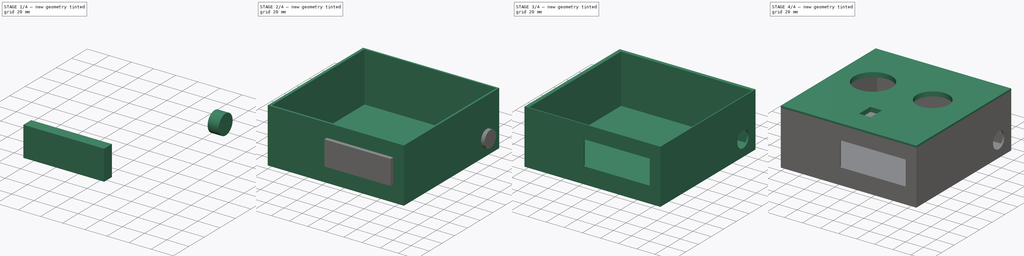
[diagram: build sequence overview — one tinted view per stage of 4, left to right]
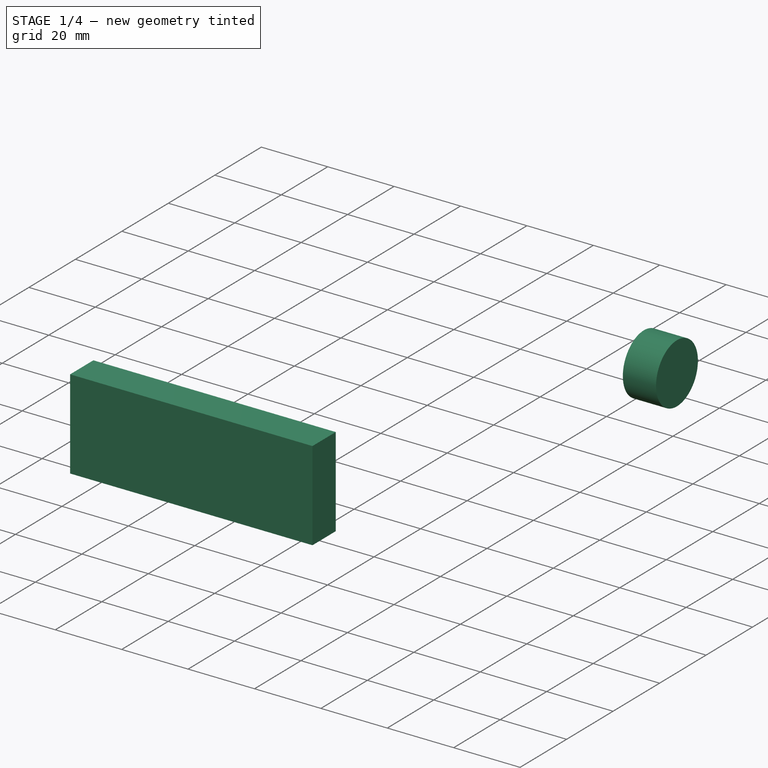
[diagram: stage 1 of 4 — iso view after this stage's code; geometry added in this stage tinted green]
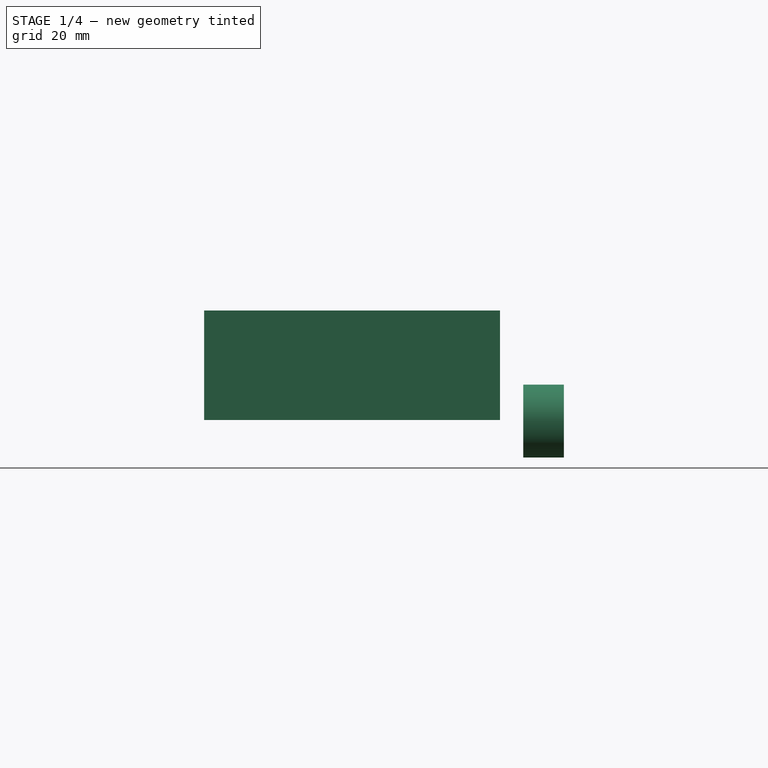
[diagram: stage 1 of 4 — front view after this stage's code; geometry added in this stage tinted green]
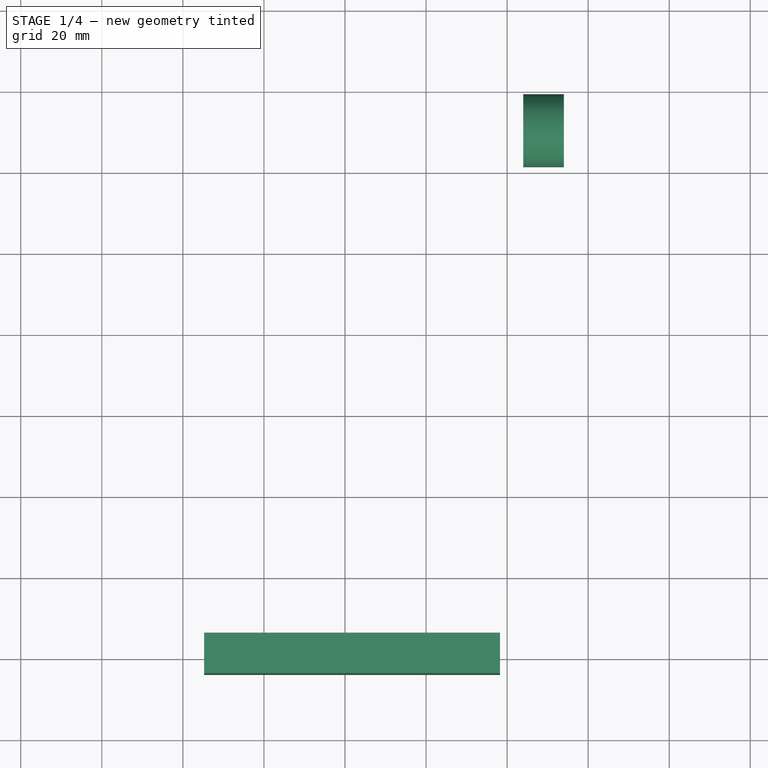
[diagram: stage 1 of 4 — top view after this stage's code; geometry added in this stage tinted green]
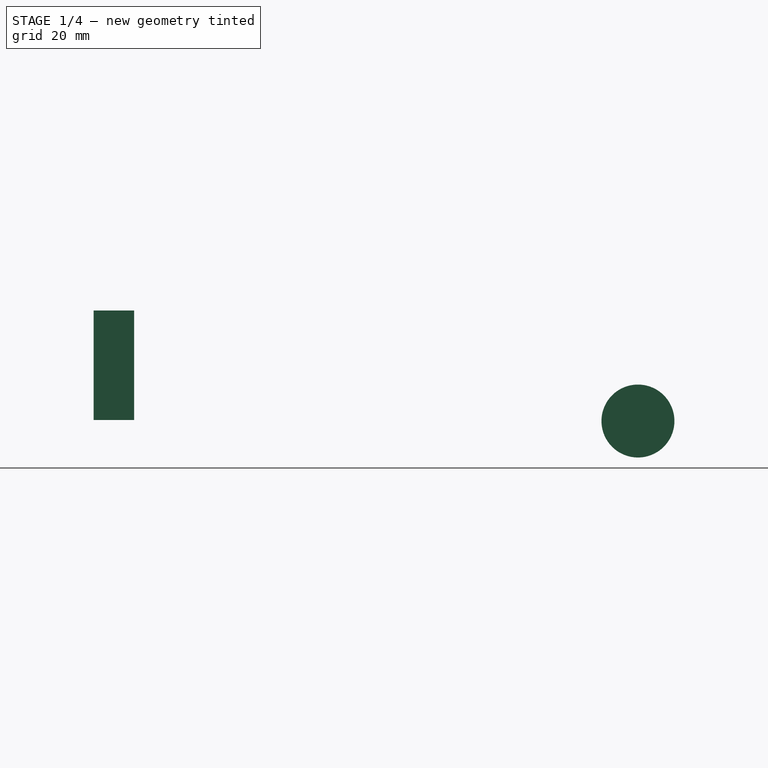
[diagram: stage 1 of 4 — right view after this stage's code; geometry added in this stage tinted green]
FCSTD DOCUMENT  (FreeCAD 0.17R13541 (Git))
Label: Caja_Final_TodoOk
License: All rights reserved
LicenseURL: http://en.wikipedia.org/wiki/All_rights_reserved
objects: Part::Box×3, Sketcher::SketchObject×3, Part::Extrusion×3, Part::Cut×3, Part::Chamfer×2, Part::Fuse×1
note: 15 computed .brp shape members not serialized (recipe doc carries the construction recipe); baked Part::Feature solids carry a one-line shape summary decoded from their .brp

FEATURE [Sketcher::SketchObject] Sketch
  MapMode = 5
  Placement = pos=(0,0,0) rot=(1,0,0;1.5708rad)
  sketch-geometry (4):
    g0: LineSegment StartX=65.2534 StartY=44.9971 StartZ=0 EndX=138.253 EndY=44.9971 EndZ=0
    g1: LineSegment StartX=138.253 StartY=44.9971 StartZ=0 EndX=138.253 EndY=17.9971 EndZ=0
    g2: LineSegment StartX=138.253 StartY=17.9971 StartZ=0 EndX=65.2534 EndY=17.9971 EndZ=0
    g3: LineSegment StartX=65.2534 StartY=17.9971 StartZ=0 EndX=65.2534 EndY=44.9971 EndZ=0
  constraints (10):
    c: Coincident(g0,g1)
    c: Coincident(g1,g2)
    c: Coincident(g2,g3)
    c: Coincident(g3,g0)
    c: Horizontal(g0)
    c: Horizontal(g2)
    c: Vertical(g1)
    c: Vertical(g3)
    c: DistanceX(g2,g2) = 73
    c: DistanceY(g1,g1) = 27
FEATURE [Part::Extrusion] Extrude  label="LCD"
  Base = -> Sketch
  Dir = (0,-1,0)
  DirMode = 2
  FaceMakerClass = Part::FaceMakerBullseye
  LengthFwd = 10
  LengthRev = 0
  Placement = pos=(0,6,0) rot=(0,0,1;0rad)
  Solid = true
  Symmetric = false
FEATURE [Sketcher::SketchObject] Sketch001
  MapMode = 5
  Placement = pos=(150,0,0) rot=(0.57735,0.57735,0.57735;2.0944rad)
  sketch-geometry (1):
    g0: Circle CenterX=129.312 CenterY=12.7282 CenterZ=0 NormalX=0 NormalY=0 NormalZ=1 AngleXU=0 Radius=9
  constraints (1):
    c: Radius(g0) = 9
FEATURE [Part::Extrusion] Extrude001  label="ConexionAlimentacion"
  Base = -> Sketch001
  Dir = (1,0,0)
  DirMode = 2
  FaceMakerClass = Part::FaceMakerBullseye
  LengthFwd = 10
  LengthRev = 0
  Placement = pos=(-6,1,5) rot=(0,0,1;0rad)
  Solid = true
  Symmetric = false
FEATURE [Part::Fuse] Fusion
  Base = -> Extrude
  Tool = -> Extrude001
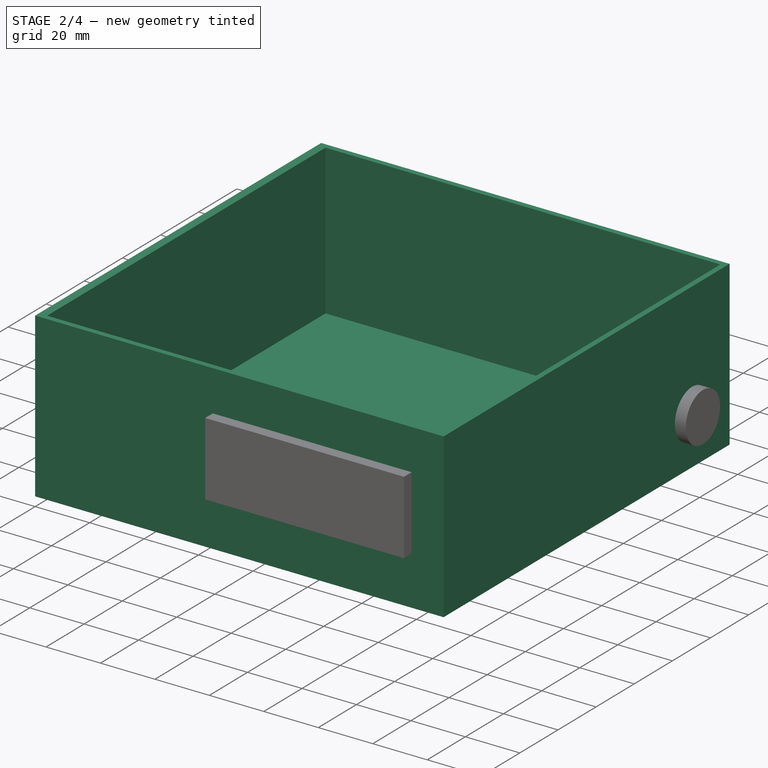
[diagram: stage 2 of 4 — iso view after this stage's code; geometry added in this stage tinted green]
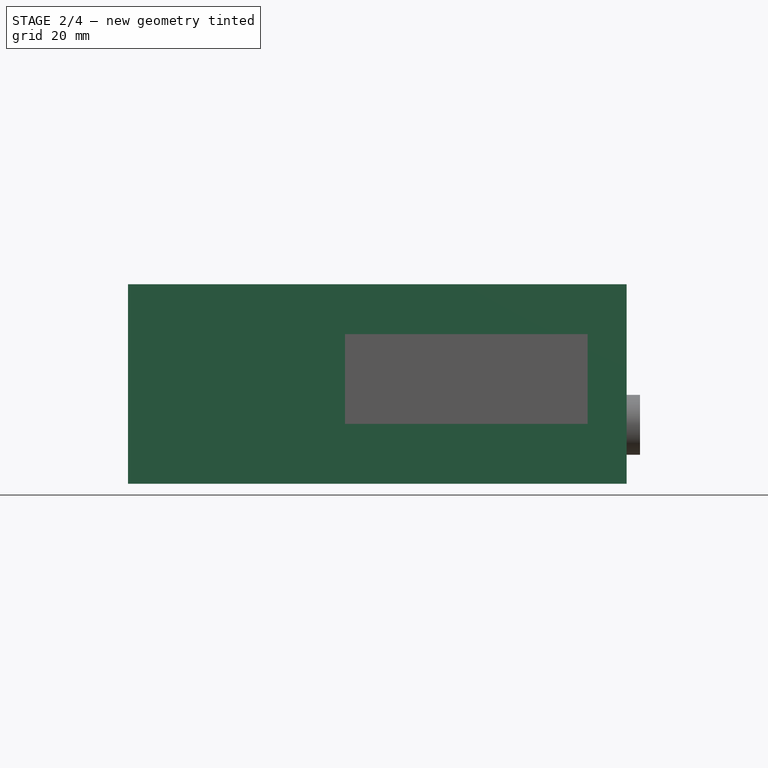
[diagram: stage 2 of 4 — front view after this stage's code; geometry added in this stage tinted green]
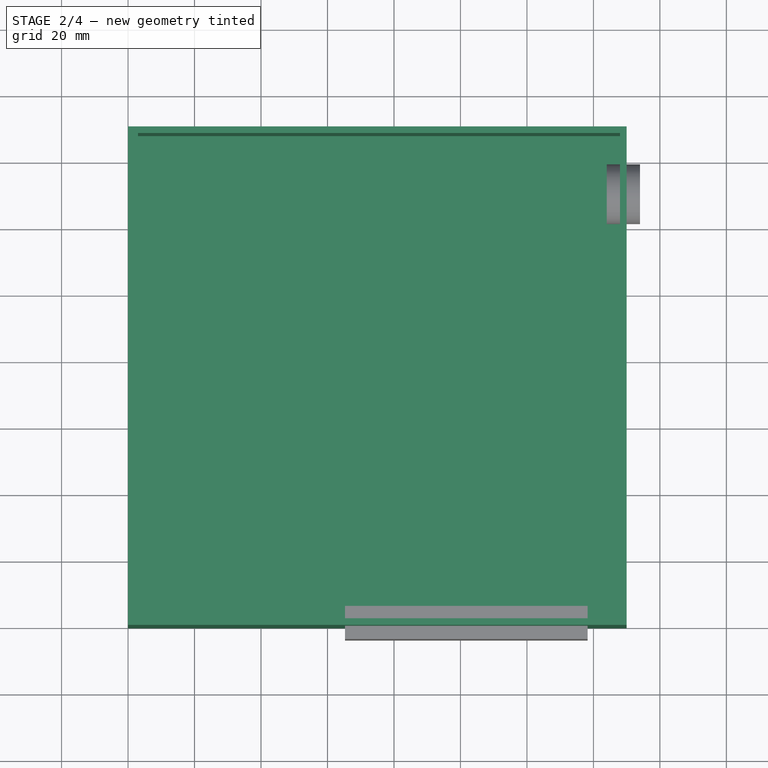
[diagram: stage 2 of 4 — top view after this stage's code; geometry added in this stage tinted green]
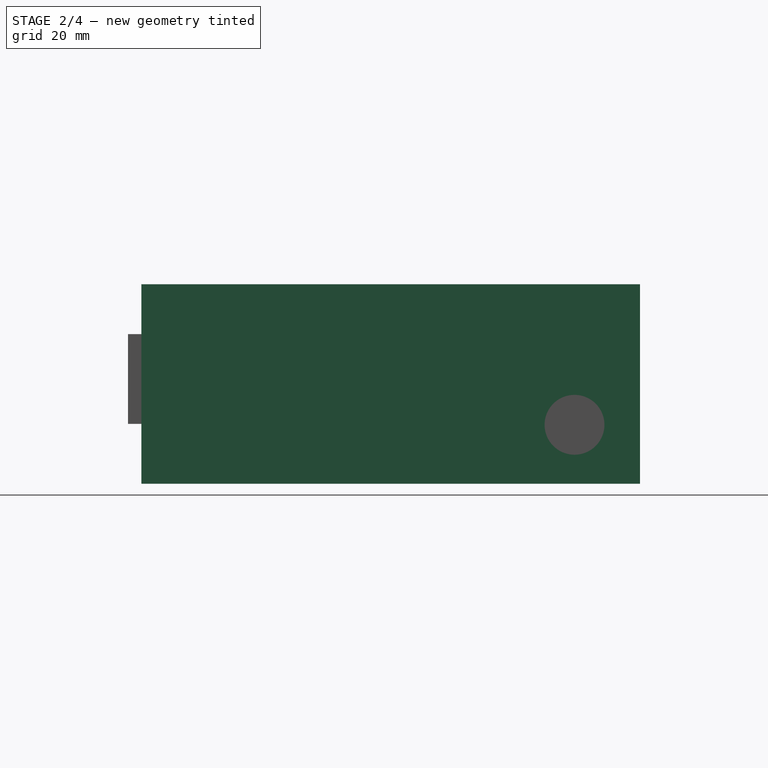
[diagram: stage 2 of 4 — right view after this stage's code; geometry added in this stage tinted green]
FEATURE [Part::Box] Box  label="Cubo"
  AttacherType = Attacher::AttachEngine3D
  Height = 57
  Length = 145
  Placement = pos=(3,2,5) rot=(0,0,1;0rad)
  Width = 146
FEATURE [Part::Box] Box001  label="Cubo001"
  AttacherType = Attacher::AttachEngine3D
  Height = 60
  Length = 150
  Width = 150
FEATURE [Part::Cut] Cut
  Base = -> Box001
  Tool = -> Box
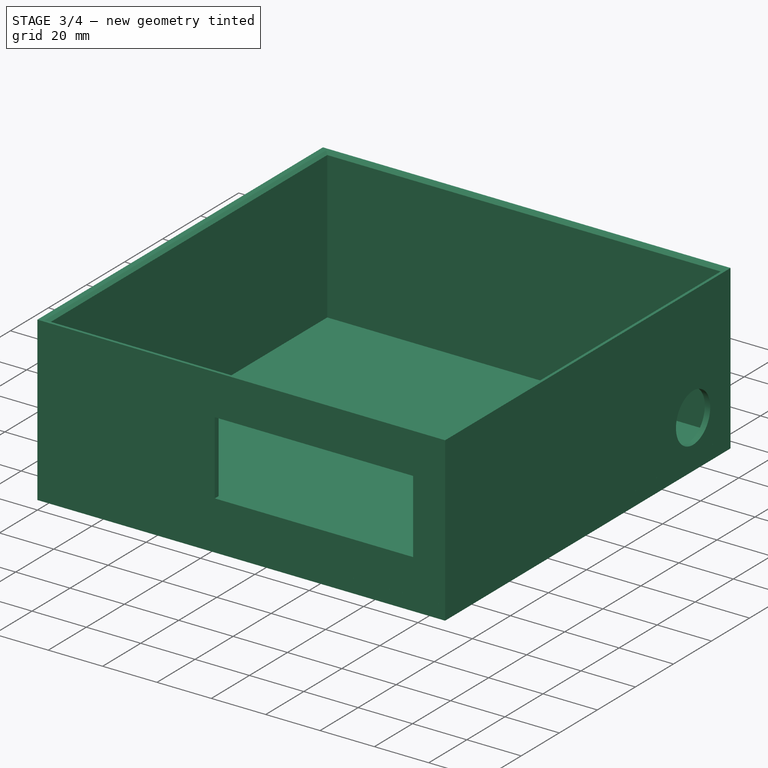
[diagram: stage 3 of 4 — iso view after this stage's code; geometry added in this stage tinted green]
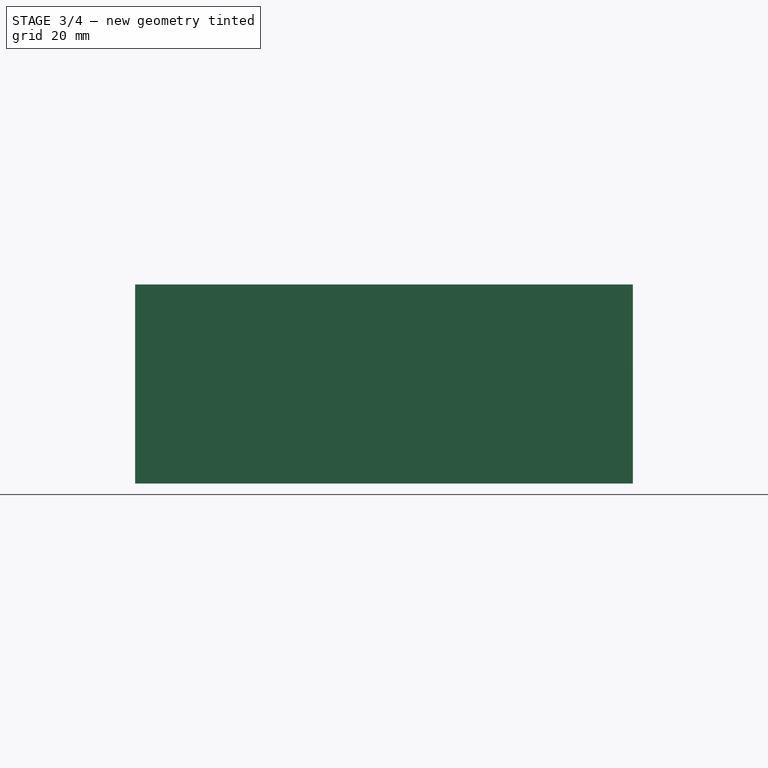
[diagram: stage 3 of 4 — front view after this stage's code; geometry added in this stage tinted green]
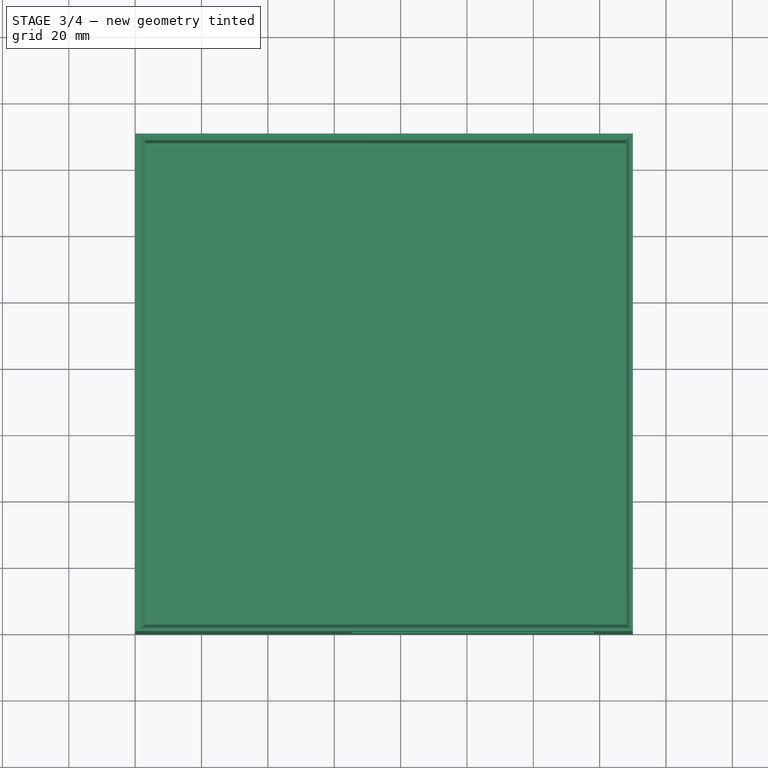
[diagram: stage 3 of 4 — top view after this stage's code; geometry added in this stage tinted green]
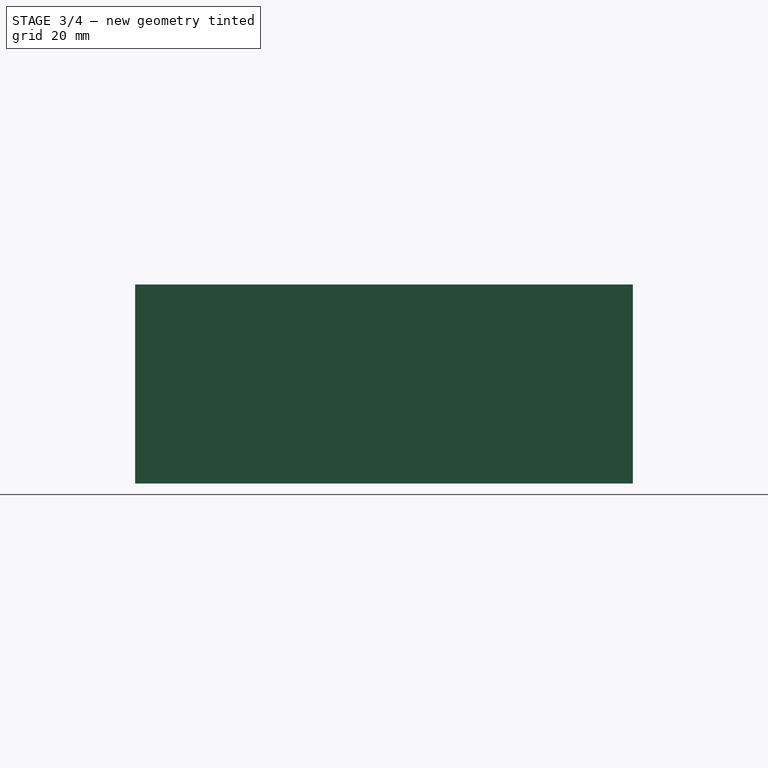
[diagram: stage 3 of 4 — right view after this stage's code; geometry added in this stage tinted green]
FEATURE [Part::Cut] Cut001  label="BaseCaja001"
  Base = -> Cut
  Tool = -> Fusion
FEATURE [Part::Box] Box002  label="TapaCaja"
  AttacherType = Attacher::AttachEngine3D
  Height = 5
  Length = 150
  Width = 150
FEATURE [Part::Chamfer] Chamfer001  label="BaseCaja"
  Base = -> Cut001
  Edges = 4 edges r=1: [Edge14,Edge15,Edge16,Edge17]
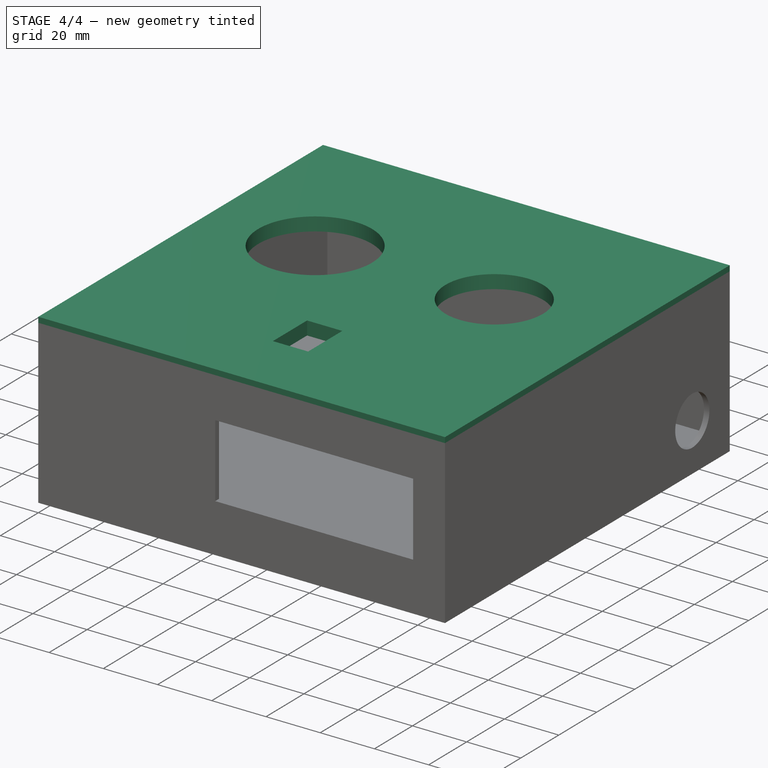
[diagram: stage 4 of 4 — iso view after this stage's code; geometry added in this stage tinted green]
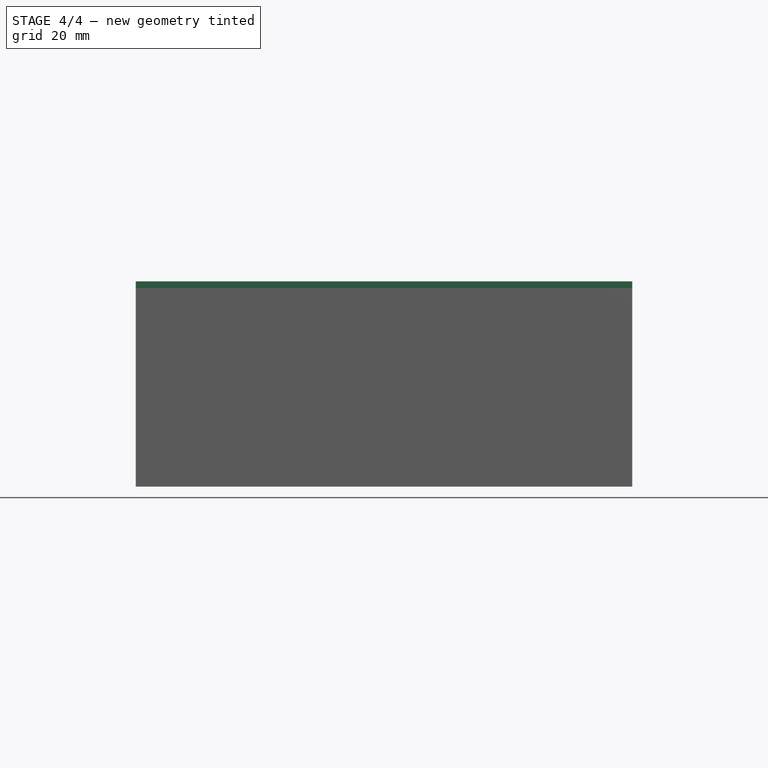
[diagram: stage 4 of 4 — front view after this stage's code; geometry added in this stage tinted green]
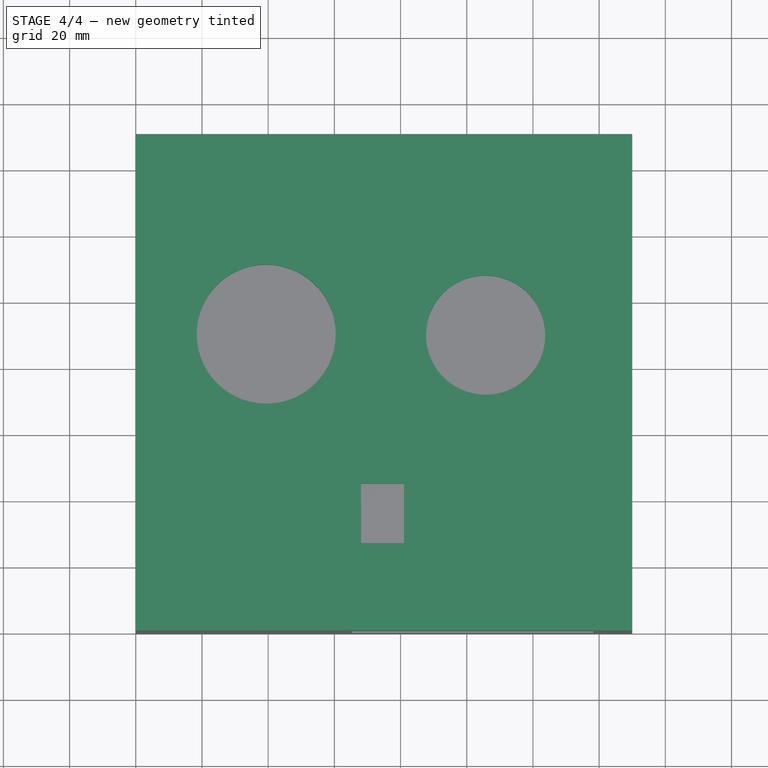
[diagram: stage 4 of 4 — top view after this stage's code; geometry added in this stage tinted green]
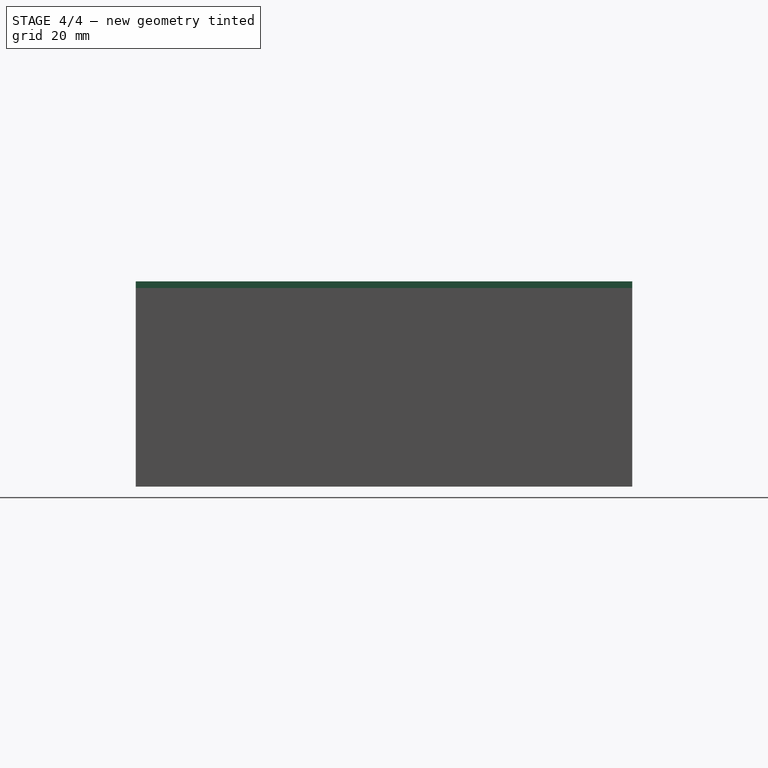
[diagram: stage 4 of 4 — right view after this stage's code; geometry added in this stage tinted green]
FEATURE [Sketcher::SketchObject] Sketch002
  MapMode = 5
  Placement = pos=(0,0,5) rot=(0,0,1;0rad)
  Support = -> [Box002]
  sketch-geometry (6):
    g0: Circle CenterX=39.4132 CenterY=89.552 CenterZ=0 NormalX=0 NormalY=0 NormalZ=1 AngleXU=0 Radius=21
    g1: Circle CenterX=105.7 CenterY=89.2471 CenterZ=0 NormalX=0 NormalY=0 NormalZ=1 AngleXU=0 Radius=18
    g2: LineSegment StartX=68.0409 StartY=44.4102 StartZ=0 EndX=81.0409 EndY=44.4102 EndZ=0
    g3: LineSegment StartX=81.0409 StartY=44.4102 StartZ=0 EndX=81.0409 EndY=26.4102 EndZ=0
    g4: LineSegment StartX=81.0409 StartY=26.4102 StartZ=0 EndX=68.0409 EndY=26.4102 EndZ=0
    g5: LineSegment StartX=68.0409 StartY=26.4102 StartZ=0 EndX=68.0409 EndY=44.4102 EndZ=0
  constraints (12):
    c: Radius(g0) = 21
    c: Radius(g1) = 18
    c: Coincident(g2,g3)
    c: Coincident(g3,g4)
    c: Coincident(g4,g5)
    c: Coincident(g5,g2)
    c: Horizontal(g2)
    c: Horizontal(g4)
    c: Vertical(g3)
    c: Vertical(g5)
    c: DistanceX(g2,g2) = 13
    c: DistanceY(g3,g3) = 18
FEATURE [Part::Extrusion] Extrude002
  Base = -> Sketch002
  Dir = (0,0,1)
  DirMode = 2
  FaceMakerClass = Part::FaceMakerBullseye
  LengthFwd = 10
  LengthRev = 0
  Placement = pos=(0,0,-7) rot=(0,0,1;0rad)
  Solid = true
  Symmetric = false
FEATURE [Part::Cut] Cut002  label="TapaCaja002"
  Base = -> Box002
  Placement = pos=(0,0,61) rot=(0,0,1;0rad)
  Tool = -> Extrude002
FEATURE [Part::Chamfer] Chamfer  label="TapaCaja003"
  Base = -> Cut002
  Edges = 4 edges r=3: [Edge4,Edge5,Edge16,Edge18]
  Placement = pos=(0,0,-4) rot=(0,0,1;0rad)
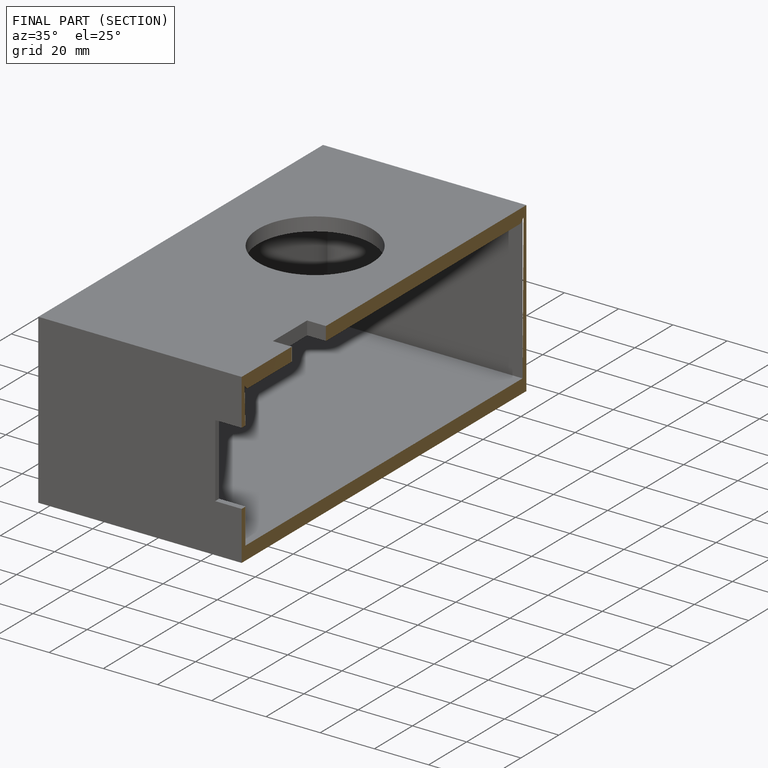
[diagram: finished part — half-section view (interior)]
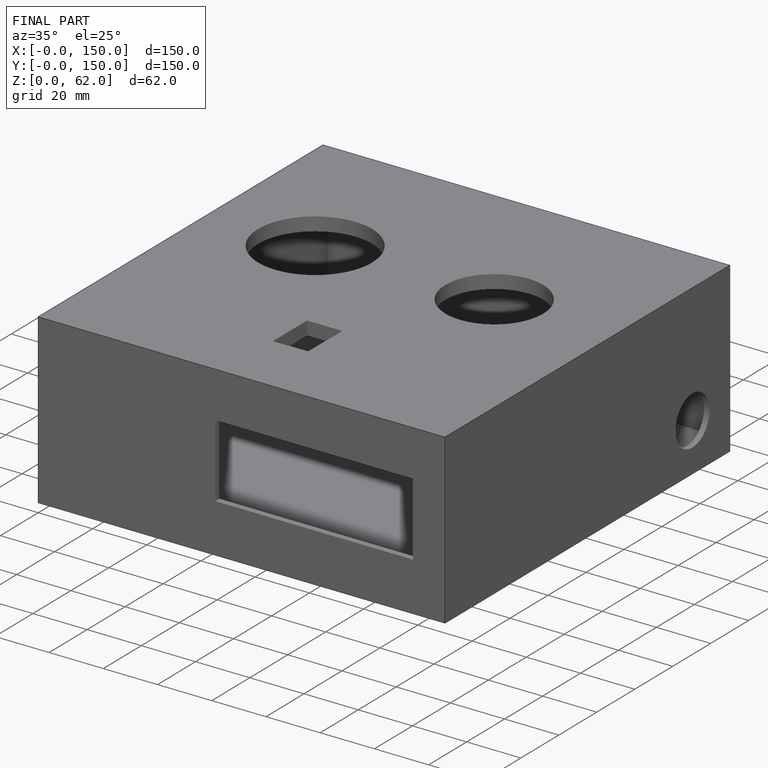
[diagram: finished part — iso view with bounding-box wireframe]
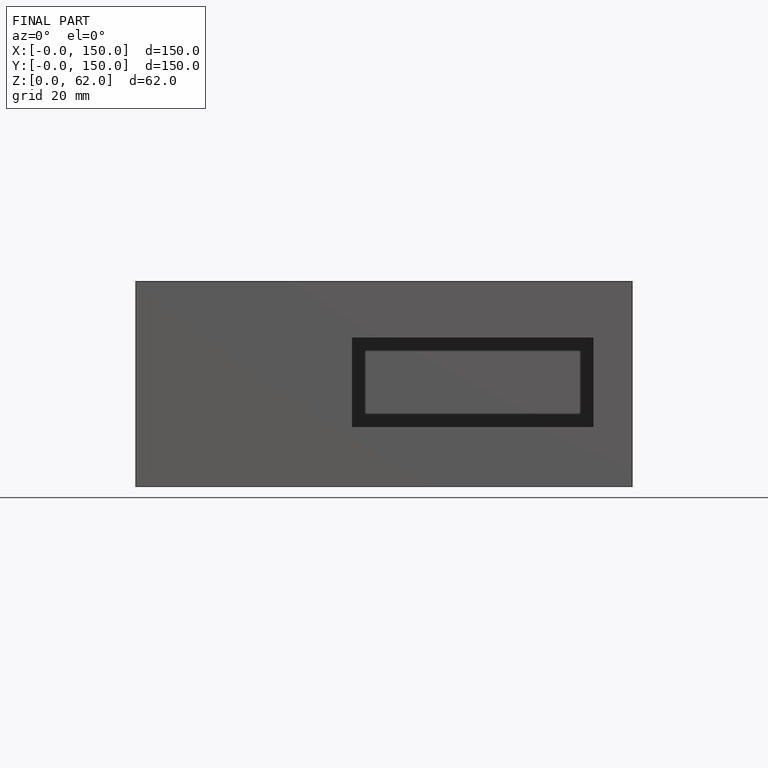
[diagram: finished part — front view with bounding-box wireframe]
